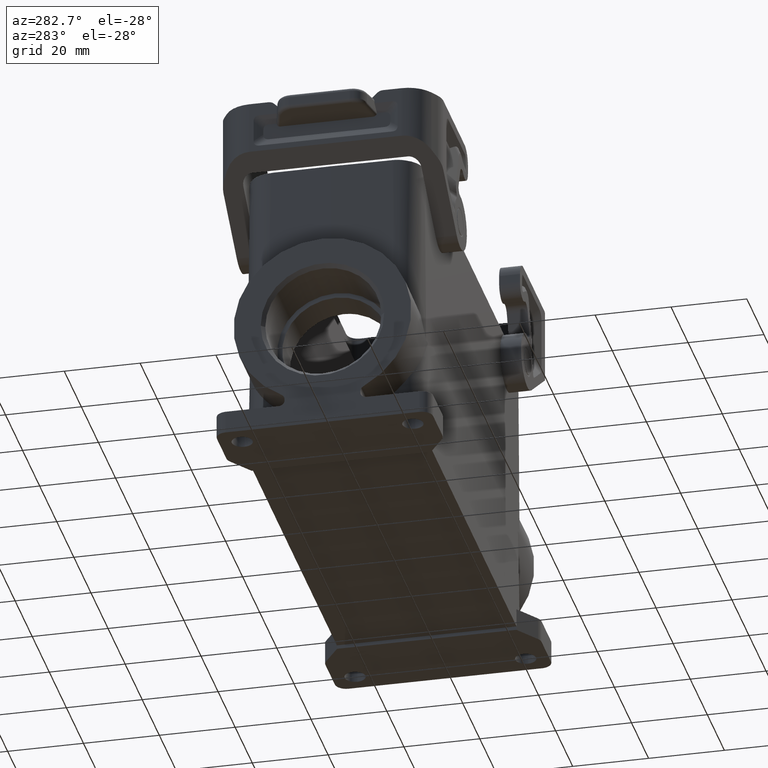
[diagram: clean part render]
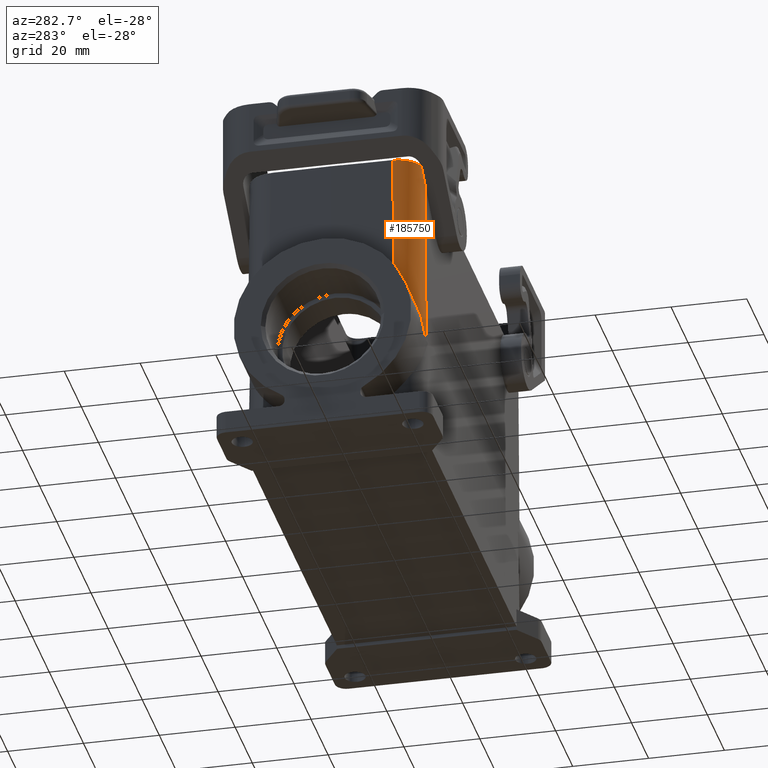
[diagram: same view with one face highlighted and labeled with its STEP entity id]
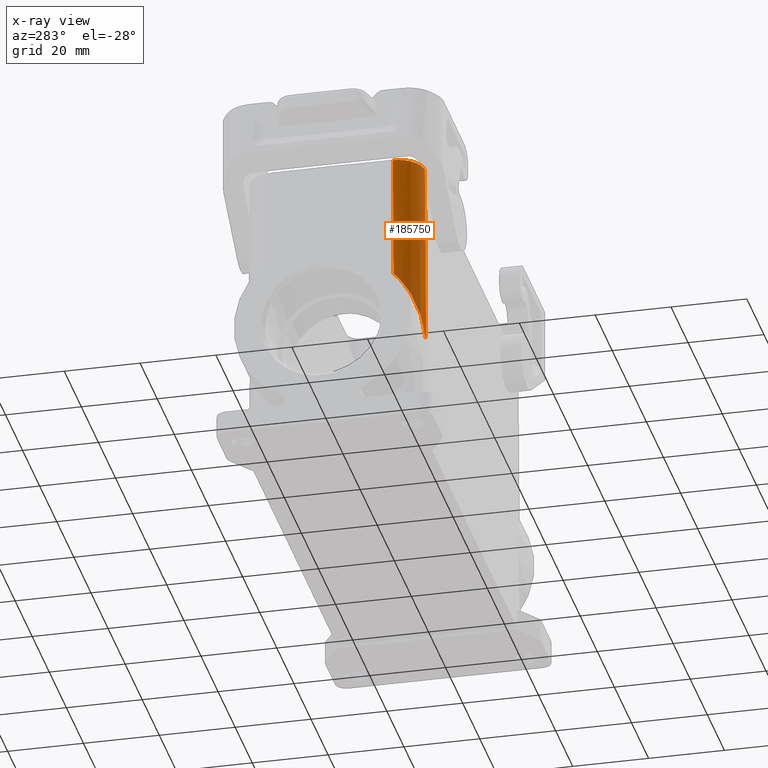
[diagram: x-ray of the same camera — body ghosted, the highlighted face saturated]
A machine part, auxiliary view. The second image highlights one B-rep face of the part: STEP entity #185750.
The next image is the same camera in x-ray: the body ghosted, the highlighted face saturated — about 0% of this face is hidden behind the body in this view.
In plain terms, the highlighted cylindrical surface (edge-blend (fillet) strip) has radius 7 mm, axis along (0.0086, 0.0087, 0.9999).
Its self-contained STEP definition (entity closure, byte-faithful):
#3310=CARTESIAN_POINT('',(-90.554178661523,-26.399607,
-6.19022242857026E-14));
#3320=DIRECTION('',(-1.,-1.4791141972894E-31,-5.21984506635388E-16));
#3330=DIRECTION('',(1.4791141972894E-31,-1.,-2.25703466448978E-31));
#3340=AXIS2_PLACEMENT_3D('',#3310,#3320,#3330);
#3350=CYLINDRICAL_SURFACE('',#3340,23.4354510053947);
#5500=CARTESIAN_POINT('',(-87.7503613048473,-9.6711673099191,
16.4127898104369));
#5510=VERTEX_POINT('',#5500);
#5540=CARTESIAN_POINT('',(-80.668244482258,0.,16.2056909608208));
#5550=DIRECTION('',(0.00857389229669481,0.999925167973668,
-0.00872621474155861));
#5560=DIRECTION('',(0.,-0.00872653549837407,-0.999961923064171));
#5570=AXIS2_PLACEMENT_3D('',#5540,#5550,#5560);
#5580=CYLINDRICAL_SURFACE('',#5570,7.);
#5590=CARTESIAN_POINT('',(-80.8933790100085,-26.195096704881,
23.4345586552306));
#5600=CARTESIAN_POINT('',(-81.0886393681561,-25.8321553895977,
23.4313913143563));
#5610=CARTESIAN_POINT('',(-81.2843255199396,-25.4684979150133,
23.419784193343));
#5620=CARTESIAN_POINT('',(-81.4798472528503,-25.1045114813895,
23.3996387028503));
#5630=CARTESIAN_POINT('',(-81.675368851876,-24.7405252970083,
23.3794932261524));
#5640=CARTESIAN_POINT('',(-81.8707254817406,-24.3762115685717,
23.3508095863235));
#5650=CARTESIAN_POINT('',(-82.06531476521,-24.0119562922818,
23.313504411053));
#5660=CARTESIAN_POINT('',(-82.2599040215571,-23.6477010667625,
23.2761992409822));
#5670=CARTESIAN_POINT('',(-82.4537258025096,-23.283505040072,
23.2302728215158));
#5680=CARTESIAN_POINT('',(-82.6461650940552,-22.9197472247516,
23.175654031135));
#5690=CARTESIAN_POINT('',(-82.8386043879537,-22.5559894049835,
23.1210352400863));
#5700=CARTESIAN_POINT('',(-83.0296612944739,-22.19267027746,
23.0577244261385));
#5710=CARTESIAN_POINT('',(-83.2187054343783,-21.8301582212064,
22.9856586088856));
#5720=CARTESIAN_POINT('',(-83.4077495828472,-21.4676461485295,
22.9135927883678));
#5730=CARTESIAN_POINT('',(-83.5947813806996,-21.1059412621744,
22.8327723304155));
#5740=CARTESIAN_POINT('',(-83.779150256346,-20.7453986676381,
22.7431372497398));
#5750=CARTESIAN_POINT('',(-83.9635191160961,-20.3848561041877,
22.6535021767925));
#5760=CARTESIAN_POINT('',(-84.1452258897609,-20.0254754443862,
22.5550527937243));
#5770=CARTESIAN_POINT('',(-84.3235921369416,-19.6675972812287,
22.4477261425879));
#5780=CARTESIAN_POINT('',(-84.4127752823418,-19.4886581558902,
22.3940628038962));
#5790=CARTESIAN_POINT('',(-84.5011228565889,-19.310094321712,
22.3381800327797));
#5800=CARTESIAN_POINT('',(-84.5885466117113,-19.1319469367824,
22.2800691433345));
#5810=CARTESIAN_POINT('',(-84.6759703615162,-18.9537995626884,
22.2219582574239));
#5820=CARTESIAN_POINT('',(-84.7624703459502,-18.7760685910258,
22.1616192534661));
#5830=CARTESIAN_POINT('',(-84.8479554156316,-18.5987943650733,
22.0990426503282));
#5840=CARTESIAN_POINT('',(-84.9334404763018,-18.4215201578079,
22.0364660537867));
#5850=CARTESIAN_POINT('',(-85.0179106879799,-18.2447026335708,
21.9716518520564));
#5860=CARTESIAN_POINT('',(-85.101271440905,-18.0683814520024,
21.9045895806027));
#5870=CARTESIAN_POINT('',(-85.1429518164708,-17.9802208631152,
21.8710584455973));
#5880=CARTESIAN_POINT('',(-85.1843547723807,-17.8921843442905,
21.8369652745477));
#5890=CARTESIAN_POINT('',(-85.2254681094362,-17.8042767968814,
21.8023086512784));
#5900=CARTESIAN_POINT('',(-85.2665769290428,-17.7163789085727,
21.7676558360076));
#5910=CARTESIAN_POINT('',(-85.3074217725006,-17.6285553189441,
21.7324181900429));
#5920=CARTESIAN_POINT('',(-85.3479927007599,-17.5408033836954,
21.6965887252748));
#5930=CARTESIAN_POINT('',(-85.4291334929795,-17.3653018151981,
21.6249307356546));
#5940=CARTESIAN_POINT('',(-85.5091695732695,-17.1901068954671,
21.5509132315293));
#5950=CARTESIAN_POINT('',(-85.587966396935,-17.0153082333579,
21.4745267813904));
#5960=CARTESIAN_POINT('',(-85.6667632196153,-16.8405095734341,
21.3981403322066));
#5970=CARTESIAN_POINT('',(-85.7443208103919,-16.6661072036758,
21.3193849747662));
#5980=CARTESIAN_POINT('',(-85.8205010372722,-16.492188097434,
21.2382535655673));
#5990=CARTESIAN_POINT('',(-85.8966812648363,-16.3182689896312,
21.1571221556403));
#6000=CARTESIAN_POINT('',(-85.9714841739516,-16.1448331534672,
21.0736147243244));
#6010=CARTESIAN_POINT('',(-86.0447674635111,-15.9719647462309,
20.9877259571795));
#6020=CARTESIAN_POINT('',(-86.1180507521867,-15.7990963410798,
20.9018371910705));
#6030=CARTESIAN_POINT('',(-86.1898144912764,-15.6267953419105,
20.8135671067802));
#6040=CARTESIAN_POINT('',(-86.2599114146623,-15.4551430376877,
20.7229117742633));
#6050=CARTESIAN_POINT('',(-86.3300083346568,-15.2834907417695,
20.6322564461324));
#6060=CARTESIAN_POINT('',(-86.3984385389705,-15.1124870756421,
20.539215866168));
#6070=CARTESIAN_POINT('',(-86.4650487679501,-14.9422105268863,
20.4437870729505));
#6080=CARTESIAN_POINT('',(-86.5316602794085,-14.7719306997146,
20.3483564423967));
#6090=CARTESIAN_POINT('',(-86.5964466113494,-14.6023920139123,
20.2505458266676));
#6100=CARTESIAN_POINT('',(-86.6592621519992,-14.4336303344994,
20.1503291850764));
#6110=CARTESIAN_POINT('',(-86.7220924387166,-14.2648290379617,
20.0500890174383));
#6120=CARTESIAN_POINT('',(-86.7830505577594,-14.0965362870018,
19.9472807460844));
#6130=CARTESIAN_POINT('',(-86.8419171196626,-13.9289177159535,
19.8419321792769));
#6140=CARTESIAN_POINT('',(-86.9007836703872,-13.7612991767354,
19.7365836324747));
#6150=CARTESIAN_POINT('',(-86.9575586492238,-13.5943550292232,
19.6286949330677));
#6160=CARTESIAN_POINT('',(-87.0120182044879,-13.428245107089,
19.5183025509236));
#6170=CARTESIAN_POINT('',(-87.0664777554806,-13.2621351979836,
19.4079101774381));
#6180=CARTESIAN_POINT('',(-87.1186219099829,-13.0968596818637,
19.2950142505895));
#6190=CARTESIAN_POINT('',(-87.1682215833027,-12.9325717656038,
19.1796591685511));
#6200=CARTESIAN_POINT('',(-87.2178212560819,-12.7682838511342,
19.0643040877698));
#6210=CARTESIAN_POINT('',(-87.2648765255404,-12.604983641707,
18.9464899504838));
#6220=CARTESIAN_POINT('',(-87.3091518311715,-12.4428171175107,
18.8262683504272));
#6230=CARTESIAN_POINT('',(-87.3534271367001,-12.2806505936895,
18.7060467506489));
#6240=CARTESIAN_POINT('',(-87.3949226162612,-12.1196177741665,
18.5834177313809));
#6250=CARTESIAN_POINT('',(-87.4333944284637,-11.959857105897,
18.4584394470932));
#6260=CARTESIAN_POINT('',(-87.4718662377973,-11.8000964495408,
18.3334611721251));
#6270=CARTESIAN_POINT('',(-87.5073145858129,-11.6416078479026,
18.2061335857666));
#6280=CARTESIAN_POINT('',(-87.5394848879651,-11.4845222933838,
18.0765210154144));
#6290=CARTESIAN_POINT('',(-87.5555711093407,-11.4059742899191,
18.0117104180538));
#6300=CARTESIAN_POINT('',(-87.5708333061439,-11.3277996998328,
17.9463478305827));
#6310=CARTESIAN_POINT('',(-87.5852507289278,-11.2499478300363,
17.8803856462935));
#6320=CARTESIAN_POINT('',(-87.5996685957236,-11.1720935626438,
17.8144214305738));
#6330=CARTESIAN_POINT('',(-87.6132409879444,-11.0945628053519,
17.7478576480922));
#6340=CARTESIAN_POINT('',(-87.6259291481348,-11.0173840938238,
17.6807121545192));
#6350=CARTESIAN_POINT('',(-87.6513054785376,-10.8630266098061,
17.5464211143368));
#6360=CARTESIAN_POINT('',(-87.6731450657597,-10.710078501211,
17.4098024280938));
#6370=CARTESIAN_POINT('',(-87.6911357762309,-10.5587567669014,
17.2710111956024));
#6380=CARTESIAN_POINT('',(-87.7091247732768,-10.4074494443905,
17.1322331815116));
#6390=CARTESIAN_POINT('',(-87.7232724345692,-10.257720901274,
16.9912405336663));
#6400=CARTESIAN_POINT('',(-87.733254900068,-10.1097254240026,
16.8481489210606));
#6410=CARTESIAN_POINT('',(-87.7432365844005,-9.96174152794733,
16.7050685059248));
#6420=CARTESIAN_POINT('',(-87.7490530546431,-9.81549299610137,
16.5598911603545));
#6430=CARTESIAN_POINT('',(-87.7503613048473,-9.6711673099191,
16.4127898104369));
#6440=B_SPLINE_CURVE_WITH_KNOTS('',3,(#5590,#5600,#5610,#5620,#5630,
#5640,#5650,#5660,#5670,#5680,#5690,#5700,#5710,#5720,#5730,#5740,#5750,
#5760,#5770,#5780,#5790,#5800,#5810,#5820,#5830,#5840,#5850,#5860,#5870,
#5880,#5890,#5900,#5910,#5920,#5930,#5940,#5950,#5960,#5970,#5980,#5990,
#6000,#6010,#6020,#6030,#6040,#6050,#6060,#6070,#6080,#6090,#6100,#6110,
#6120,#6130,#6140,#6150,#6160,#6170,#6180,#6190,#6200,#6210,#6220,#6230,
#6240,#6250,#6260,#6270,#6280,#6290,#6300,#6310,#6320,#6330,#6340,#6350,
#6360,#6370,#6380,#6390,#6400,#6410,#6420,#6430),.UNSPECIFIED.,.F.,.F.,(
4,3,3,3,3,3,3,3,3,3,3,3,3,3,3,3,3,3,3,3,3,3,3,3,3,3,3,3,4),(0.,
1.23885266374993,2.48146646030933,3.72627120226435,4.97180043540341,
6.21673780473117,7.45996234649994,8.08064634187598,8.70059269603192,
9.31973562255333,9.62899070370793,9.9381969226978,10.5571195915106,
11.1764536422211,11.7959017406594,12.4152109613819,13.0341772828232,
13.6526591952807,14.2717219240343,14.8917049121163,15.5120351297792,
16.1322354339776,16.7519379764259,17.3708978006019,17.6800777132962,
17.9892924622377,18.6077654449025,19.2260582047448,19.8443154318253),
.UNSPECIFIED.);
#6450=SURFACE_CURVE('',#6440,(#3350,#5580),.CURVE_3D.);
#6460=CARTESIAN_POINT('',(-80.8933790100085,-26.195096704881,
23.4345586552306));
#6470=VERTEX_POINT('',#6460);
#6480=EDGE_CURVE('',#6470,#5510,#6450,.T.);
#34530=CARTESIAN_POINT('',(-80.4658821113301,23.600393,15.9997334512998)
);
#34540=DIRECTION('',(0.,1.,0.));
#34550=DIRECTION('',(-0.700853744651179,0.,0.713305003913767));
#34560=AXIS2_PLACEMENT_3D('',#34530,#34540,#34550);
#34570=ELLIPSE('',#34560,7.00052386338608,7.);
#34580=CARTESIAN_POINT('',(-87.4650731815187,23.600393,16.12243330242));
#34590=VERTEX_POINT('',#34580);
#34600=CARTESIAN_POINT('',(-80.4664058931541,23.600393,23.));
#34610=VERTEX_POINT('',#34600);
#34620=EDGE_CURVE('',#34590,#34610,#34570,.T.);
#38780=CARTESIAN_POINT('',(-80.668244482258,0.0610857484886184,
23.20542442227));
#38790=DIRECTION('',(0.00857389229669481,0.999925167973668,
-0.00872621474155861));
#38800=VECTOR('',#38790,1.);
#38810=LINE('',#38780,#38800);
#38820=EDGE_CURVE('',#6470,#34610,#38810,.T.);
#184340=CARTESIAN_POINT('',(-87.6669118503971,0.0610764448332455,
16.3278578058817));
#184350=DIRECTION('',(0.00857389229669481,0.999925167973668,
-0.00872621474155861));
#184360=VECTOR('',#184350,1.);
#184370=LINE('',#184340,#184360);
#184380=EDGE_CURVE('',#5510,#34590,#184370,.T.);
#185690=ORIENTED_EDGE('',*,*,#34620,.F.);
#185700=ORIENTED_EDGE('',*,*,#38820,.T.);
#185710=ORIENTED_EDGE('',*,*,#6480,.F.);
#185720=ORIENTED_EDGE('',*,*,#184380,.F.);
#185730=EDGE_LOOP('',(#185720,#185710,#185700,#185690));
#185740=FACE_OUTER_BOUND('',#185730,.T.);
#185750=ADVANCED_FACE('',(#185740),#5580,.T.);